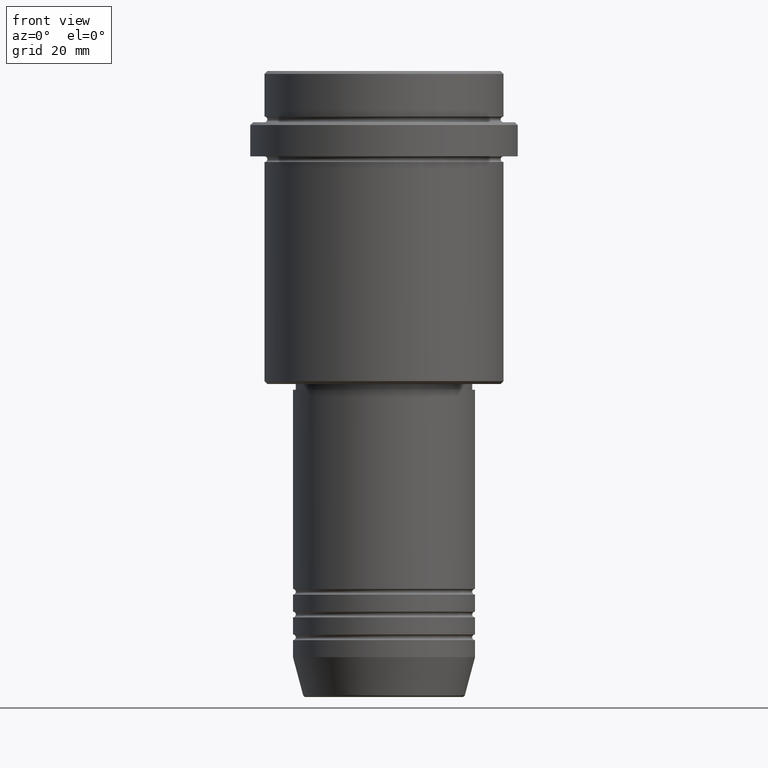
[diagram: clean part render]
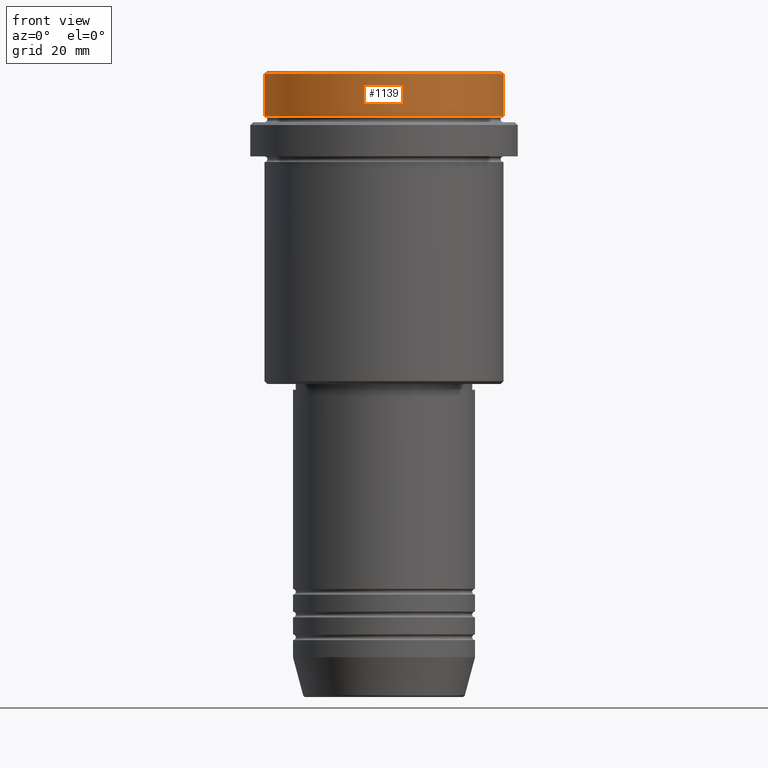
[diagram: same view with one face highlighted and labeled with its STEP entity id]
A machine part, front view. The second image highlights one B-rep face of the part: STEP entity #1139.
In plain terms, the highlighted cylindrical surface (partial cylindrical patch) has radius 21 mm, axis along (-0, -0, 1).
Its self-contained STEP definition (entity closure, byte-faithful):
#21 = VECTOR ( 'NONE', #750, 1000.000000000000000 ) ;
#37 = CARTESIAN_POINT ( 'NONE',  ( -20.99999999999999645, 2.571758278209441267E-15, 0.000000000000000000 ) ) ;
#120 = EDGE_CURVE ( 'NONE', #1040, #169, #535, .T. ) ;
#169 = VERTEX_POINT ( 'NONE', #1230 ) ;
#171 = DIRECTION ( 'NONE',  ( 1.000000000000000000, 0.000000000000000000, 0.000000000000000000 ) ) ;
#177 = LINE ( 'NONE', #1245, #1156 ) ;
#333 = CARTESIAN_POINT ( 'NONE',  ( 0.000000000000000000, 0.000000000000000000, 0.000000000000000000 ) ) ;
#399 = EDGE_CURVE ( 'NONE', #567, #169, #845, .T. ) ;
#498 = CARTESIAN_POINT ( 'NONE',  ( -20.99999999999999645, 2.571758278209441267E-15, -7.999999999999998224 ) ) ;
#535 = CIRCLE ( 'NONE', #1218, 20.99999999999999645 ) ;
#555 = DIRECTION ( 'NONE',  ( 1.000000000000000000, 0.000000000000000000, 0.000000000000000000 ) ) ;
#567 = VERTEX_POINT ( 'NONE', #498 ) ;
#640 = EDGE_LOOP ( 'NONE', ( #1173, #1251, #1258, #1011 ) ) ;
#654 = DIRECTION ( 'NONE',  ( -0.000000000000000000, -0.000000000000000000, 1.000000000000000000 ) ) ;
#750 = DIRECTION ( 'NONE',  ( -0.000000000000000000, -0.000000000000000000, 1.000000000000000000 ) ) ;
#803 = DIRECTION ( 'NONE',  ( 0.000000000000000000, 0.000000000000000000, -1.000000000000000000 ) ) ;
#805 = DIRECTION ( 'NONE',  ( -0.000000000000000000, -0.000000000000000000, 1.000000000000000000 ) ) ;
#823 = AXIS2_PLACEMENT_3D ( 'NONE', #333, #654, #555 ) ;
#845 = LINE ( 'NONE', #37, #21 ) ;
#989 = CARTESIAN_POINT ( 'NONE',  ( 20.99999999999999645, 0.000000000000000000, -7.999999999999998224 ) ) ;
#994 = DIRECTION ( 'NONE',  ( -0.000000000000000000, -0.000000000000000000, 1.000000000000000000 ) ) ;
#1011 = ORIENTED_EDGE ( 'NONE', *, *, #120, .T. ) ;
#1040 = VERTEX_POINT ( 'NONE', #1406 ) ;
#1121 = VERTEX_POINT ( 'NONE', #989 ) ;
#1133 = CARTESIAN_POINT ( 'NONE',  ( 0.000000000000000000, 0.000000000000000000, -0.4999999999999935052 ) ) ;
#1139 = ADVANCED_FACE ( 'NONE', ( #1214 ), #1197, .T. ) ;
#1143 = DIRECTION ( 'NONE',  ( 1.000000000000000000, 0.000000000000000000, 0.000000000000000000 ) ) ;
#1156 = VECTOR ( 'NONE', #805, 1000.000000000000000 ) ;
#1173 = ORIENTED_EDGE ( 'NONE', *, *, #399, .F. ) ;
#1197 = CYLINDRICAL_SURFACE ( 'NONE', #823, 20.99999999999999645 ) ;
#1214 = FACE_OUTER_BOUND ( 'NONE', #640, .T. ) ;
#1218 = AXIS2_PLACEMENT_3D ( 'NONE', #1133, #803, #171 ) ;
#1226 = AXIS2_PLACEMENT_3D ( 'NONE', #1370, #994, #1143 ) ;
#1230 = CARTESIAN_POINT ( 'NONE',  ( -20.99999999999999645, 2.571758278209441267E-15, -0.4999999999999935052 ) ) ;
#1245 = CARTESIAN_POINT ( 'NONE',  ( 20.99999999999999645, 0.000000000000000000, 0.000000000000000000 ) ) ;
#1251 = ORIENTED_EDGE ( 'NONE', *, *, #1305, .T. ) ;
#1258 = ORIENTED_EDGE ( 'NONE', *, *, #1314, .T. ) ;
#1305 = EDGE_CURVE ( 'NONE', #567, #1121, #1380, .T. ) ;
#1314 = EDGE_CURVE ( 'NONE', #1121, #1040, #177, .T. ) ;
#1370 = CARTESIAN_POINT ( 'NONE',  ( 0.000000000000000000, 0.000000000000000000, -7.999999999999998224 ) ) ;
#1380 = CIRCLE ( 'NONE', #1226, 20.99999999999999645 ) ;
#1406 = CARTESIAN_POINT ( 'NONE',  ( 20.99999999999999645, 0.000000000000000000, -0.4999999999999935052 ) ) ;